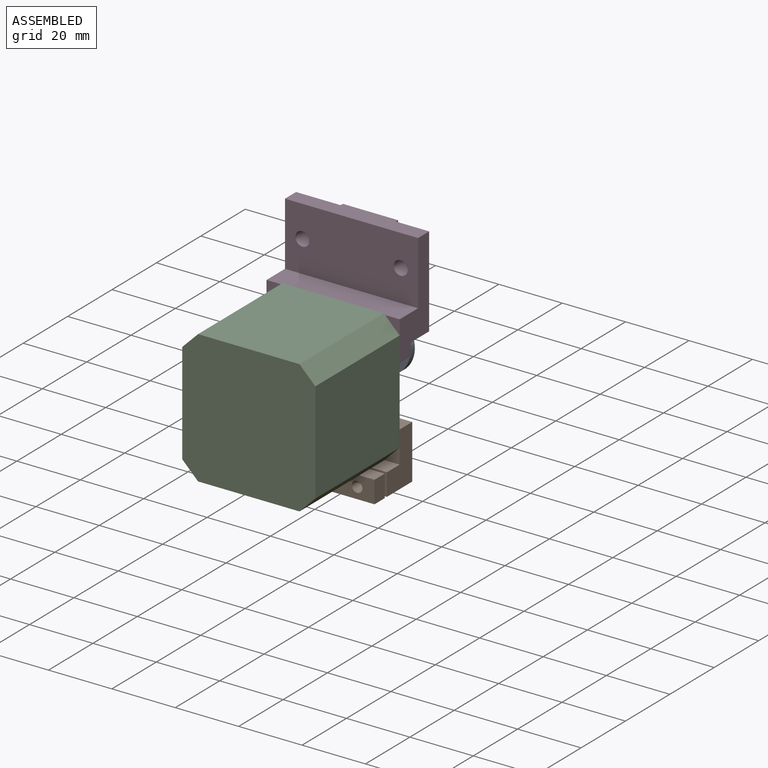
[diagram: assembled view]
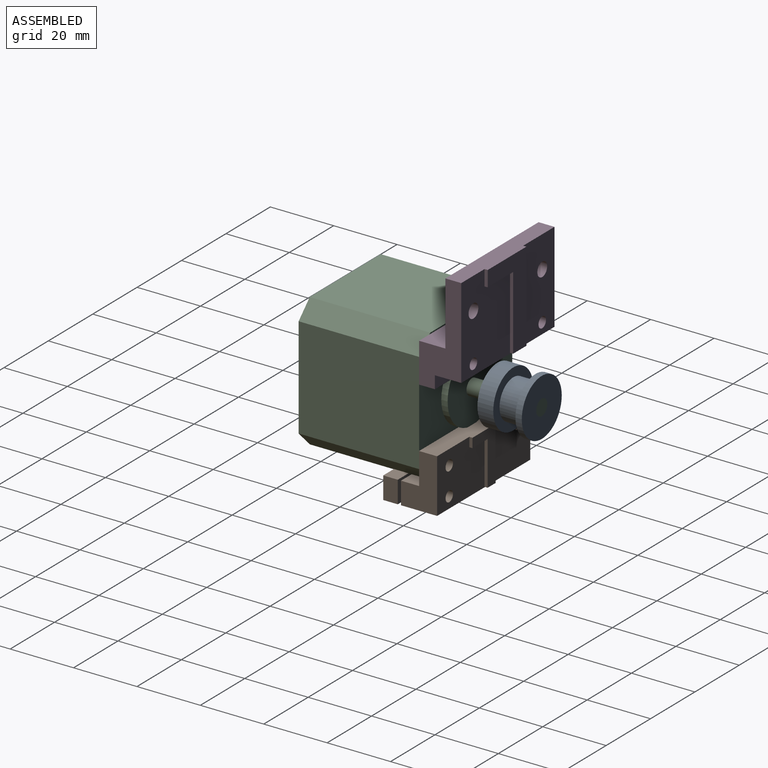
[diagram: assembled view, second angle]
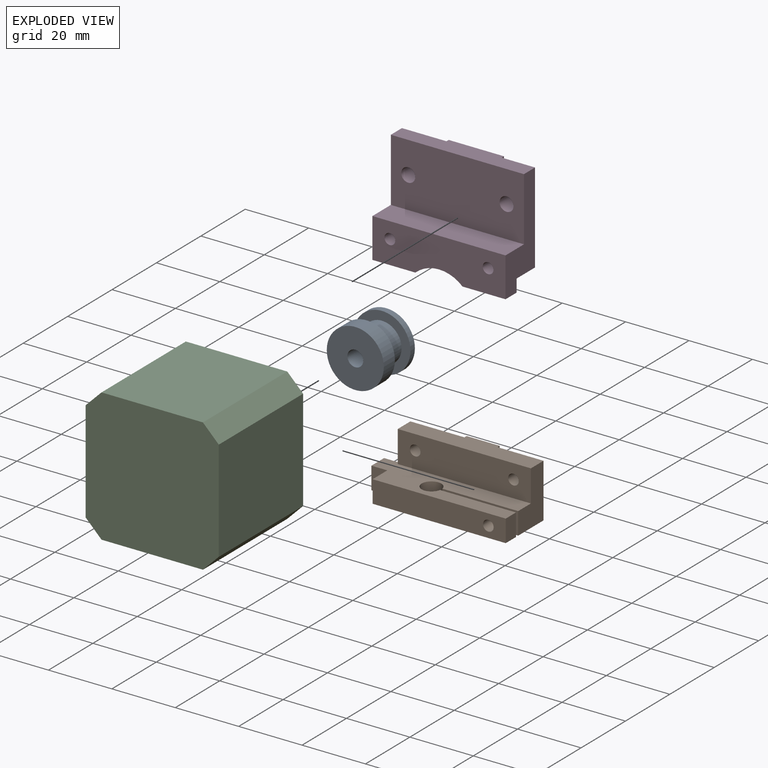
[diagram: exploded view]
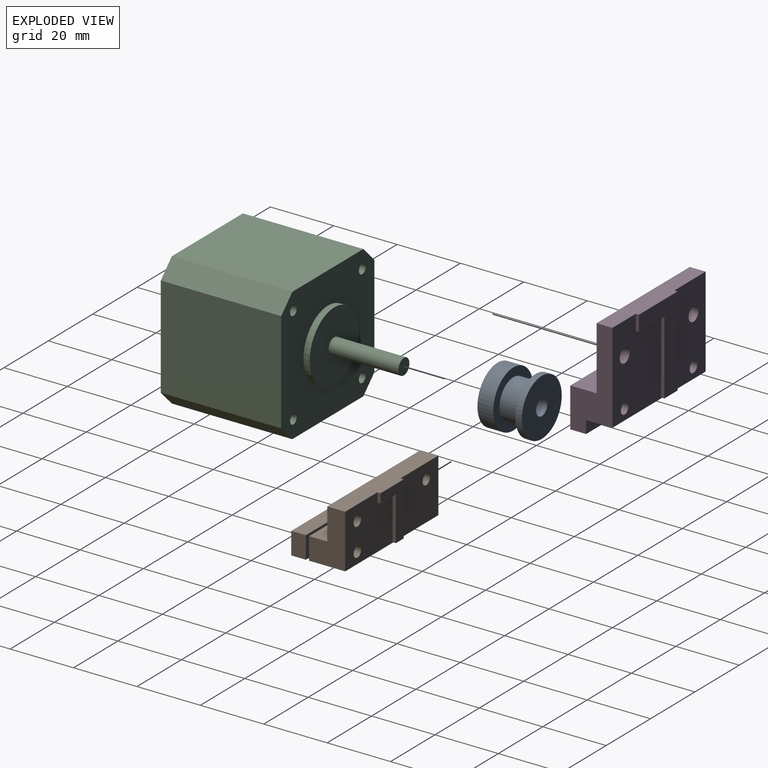
[diagram: exploded view, second angle]
ASSEMBLY  parts=4 mates=2
PART A: 8 faces, bbox 18x18x14 mm
  f0: cylinder r=9mm len=18mm, axis (0,0,-1), area 282.7mm2, adj f1,f2
  f1: plane 18x18mm, normal (0,0,1), area 133.7mm2, adj f0,f3
  f2: plane 18x18mm, normal (0,0,-1), area 234.8mm2, adj f0,f7
  f3: cylinder r=6.2mm len=12.4mm, axis (0,0,-1), area 272.7mm2, adj f1,f6
  f4: cylinder r=9mm len=18mm, axis (0,0,-1), area 113.1mm2, adj f5,f6
  f5: plane 18x18mm, normal (0,0,1), area 234.8mm2, adj f4,f7
  f6: plane 18x18mm, normal (0,0,-1), area 133.7mm2, adj f3,f4
  f7: cylinder r=2.5mm len=14mm, axis (0,0,1), area 219.9mm2, adj f2,f5
PART B: 26 faces, bbox 47x18x17 mm
  f0: plane 7x6.6mm, normal (-1,0,0), area 46.2mm2, adj f4,f5,f7,f24
  f1: plane 17x5.67mm, normal (-1,0,0), area 89.6mm2, adj f2,f4,f5,f10,f11,f23
  f2: plane 42x17mm, normal (0,1,0), area 607.1mm2, adj f1,f5,f8,f9,f11,f12,f13,f17
  f3: plane 7x4.6mm, normal (1,0,0), area 32.2mm2, adj f4,f5,f7,f15
  f4: plane 47x12.3mm, normal (0,0,1), area 450.1mm2, adj f0,f1,f3,f7,f8,f10,f14,f15
  f5: plane 47x17mm, normal (0,0,-1), area 688.4mm2, adj f0,f1,f2,f3,f7,f8,f14,f15
  f6: cylinder r=1.68mm len=4.6mm, axis (0,1,0), area 48.4mm2, adj f7,f15
  f7: plane 42x7mm, normal (0,-1,0), area 285.2mm2, adj f0,f3,f4,f5,f6
  f8: plane 17x11.4mm, normal (1,0,0), area 136.5mm2, adj f2,f4,f5,f10,f11,f16
  f9: cylinder r=1.68mm len=11.4mm, axis (0,1,0), area 120mm2, adj f2,f16
  f10: plane 42x10mm, normal (0,-1,0), area 402.4mm2, adj f1,f4,f8,f11,f12,f13
  f11: plane 42x6.67mm, normal (0,0,1), area 248.7mm2, adj f1,f2,f8,f10,f17,f18,f22
  f12: cylinder r=1.68mm len=5.67mm, axis (0,1,0), area 59.7mm2, adj f2,f10
  f13: cylinder r=1.68mm len=5.67mm, axis (0,1,0), area 59.7mm2, adj f2,f10
  f14: cylinder r=3.1mm len=7mm, axis (0,0,1), area 129.3mm2, adj f4,f5,f15,f16
  f15: plane 23.94x7mm, normal (0,1,0), area 158.8mm2, adj f3,f4,f5,f6,f14
  f16: plane 23.94x7mm, normal (0,-1,0), area 158.8mm2, adj f4,f5,f8,f9,f14
  f17: plane 16.86x1mm, normal (-1,0,0), area 16.9mm2, adj f2,f11,f21,f22
  f18: plane 2.95x1mm, normal (1,0,0), area 3mm2, adj f2,f11,f19,f22
  f19: plane 6.84x1mm, normal (0,0,-1), area 6.8mm2, adj f2,f18,f20,f22
  f20: plane 13.9x1mm, normal (1,0,0), area 13.9mm2, adj f2,f19,f21,f22
  f21: plane 3.58x1mm, normal (0,0,-1), area 3.6mm2, adj f2,f17,f20,f22
  f22: plane 16.86x10.41mm, normal (0,1,0), area 80.4mm2, adj f11,f17,f18,f19,f20,f21
  f23: plane 7x5mm, normal (0,1,0), area 35mm2, adj f1,f4,f5,f25
  f24: plane 7x5mm, normal (0,-1,0), area 35mm2, adj f0,f4,f5,f25
  f25: plane 7x5.7mm, normal (-1,0,0), area 39.9mm2, adj f4,f5,f23,f24
PART C: 22 faces, bbox 42x42x62 mm
  f0: plane 38x32mm, normal (-1,0,0), area 1216mm2, adj f4,f5,f8,f9
  f1: plane 38x32mm, normal (0,-1,0), area 1216mm2, adj f4,f5,f7,f9
  f2: plane 38x32mm, normal (1,0,0), area 1216mm2, adj f4,f5,f6,f7
  f3: plane 38x32mm, normal (0,1,0), area 1216mm2, adj f4,f5,f6,f8
  f4: plane 42x42mm, normal (0,0,1), area 1305.6mm2, adj f0,f1,f2,f3,f6,f7,f8,f9
  f5: plane 42x42mm, normal (0,0,-1), area 1714mm2, adj f0,f1,f2,f3,f6,f7,f8,f9
  f6: plane 38x5mm, normal (0.71,0.71,0), area 268.7mm2, adj f2,f3,f4,f5
  f7: plane 38x5mm, normal (0.71,-0.71,0), area 268.7mm2, adj f1,f2,f4,f5
  f8: plane 38x5mm, normal (-0.71,0.71,0), area 268.7mm2, adj f0,f3,f4,f5
  f9: plane 38x5mm, normal (-0.71,-0.71,0), area 268.7mm2, adj f0,f1,f4,f5
  f10: cylinder r=11mm len=22mm, axis (0,0,-1), area 138.2mm2, adj f4,f11
  f11: plane 22x22mm, normal (0,0,1), area 360.5mm2, adj f10,f12
  f12: cylinder r=2.5mm len=22mm, axis (0,0,-1), area 345.6mm2, adj f11,f13
  f13: plane 5x5mm, normal (0,0,1), area 19.6mm2, adj f12
  f14: cylinder r=1.5mm len=25mm, axis (0,0,1), area 235.6mm2, adj f4,f15
  f15: plane 3x3mm, normal (0,0,1), area 7.1mm2, adj f14
  f16: cylinder r=1.5mm len=25mm, axis (0,0,1), area 235.6mm2, adj f4,f17
  f17: plane 3x3mm, normal (0,0,1), area 7.1mm2, adj f16
  f18: cylinder r=1.5mm len=25mm, axis (0,0,1), area 235.6mm2, adj f4,f19
  f19: plane 3x3mm, normal (0,0,1), area 7.1mm2, adj f18
  f20: cylinder r=1.5mm len=25mm, axis (0,0,1), area 235.6mm2, adj f4,f21
  f21: plane 3x3mm, normal (0,0,1), area 7.1mm2, adj f20
PART D: 22 faces, bbox 32.5x42x14.3 mm
  f0: plane 42x8.3mm, normal (-1,0,0), area 348.6mm2, adj f4,f7,f8,f12
  f1: plane 13.56x5mm, normal (1,0,0), area 67.8mm2, adj f4,f6,f7,f10
  f2: plane 42x8.3mm, normal (1,0,0), area 348.6mm2, adj f3,f6,f7,f8
  f3: plane 42x28.5mm, normal (0,0,1), area 922.4mm2, adj f2,f7,f8,f9,f11,f13,f14,f15
  f4: plane 42x12.5mm, normal (0,0,-1), area 477.2mm2, adj f0,f1,f5,f7,f8,f9,f10,f11
  f5: plane 13.56x5mm, normal (1,0,0), area 67.8mm2, adj f4,f6,f8,f10
  f6: plane 42x4mm, normal (0,0,1), area 138.4mm2, adj f1,f2,f5,f7,f8,f10
  f7: plane 32.5x13.3mm, normal (0,1,0), area 233mm2, adj f0,f1,f2,f3,f4,f6,f12,f13
  f8: plane 32.5x13.3mm, normal (0,-1,0), area 233mm2, adj f0,f2,f3,f4,f5,f6,f12,f13
  f9: cylinder r=1.7mm len=13.3mm, axis (0,0,-1), area 142.1mm2, adj f3,f4
  f10: cylinder r=11mm len=14.89mm, axis (0,0,-1), area 81.7mm2, adj f1,f4,f5,f6
  f11: cylinder r=1.7mm len=13.3mm, axis (0,0,-1), area 142.1mm2, adj f3,f4
  f12: plane 42x20mm, normal (0,0,-1), area 809.6mm2, adj f0,f7,f8,f13,f14,f15
  f13: plane 42x6mm, normal (-1,0,0), area 227.5mm2, adj f3,f7,f8,f12,f16,f17,f21
  f14: cylinder r=2.2mm len=5mm, axis (0,0,1), area 69.1mm2, adj f3,f12
  f15: cylinder r=2.2mm len=5mm, axis (0,0,1), area 69.1mm2, adj f3,f12
  f16: plane 28.26x1mm, normal (0,1,0), area 28.3mm2, adj f3,f13,f20,f21
  f17: plane 4.95x1mm, normal (0,-1,0), area 4.9mm2, adj f3,f13,f18,f21
  f18: plane 11.46x1mm, normal (1,0,0), area 11.5mm2, adj f3,f17,f19,f21
  f19: plane 23.31x1mm, normal (0,-1,0), area 23.3mm2, adj f3,f18,f20,f21
  f20: plane 5.99x1mm, normal (1,0,0), area 6mm2, adj f3,f16,f19,f21
  f21: plane 28.26x17.45mm, normal (0,0,1), area 226.1mm2, adj f13,f16,f17,f18,f19,f20
PLACE A rot(axis=(-1,0,0),90deg) t=(11.8,9.95,4.27)mm
PLACE B t=(-9.2,-11.38,-23.56)mm
PLACE C rot(axis=(-1,0,0),90deg) t=(-9.2,-38.05,25.27)mm
PLACE D rot(axis=(-0.58,0.58,0.58),120deg) t=(32.8,-0.05,24.87)mm
MATE fastened A.f0 <-> C.f10  axis (0,1,0) through (11.8,23.95,4.27)mm
MATE fastened D.f9 <-> C.f14  axis (0,-1,0) through (-3.7,-0.05,19.77)mm
